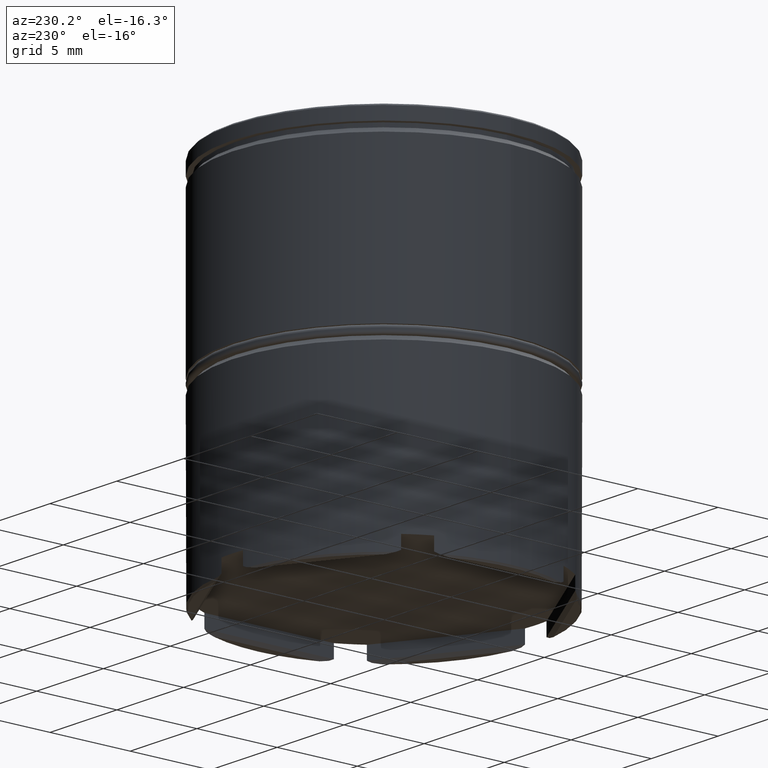
[diagram: clean part render]
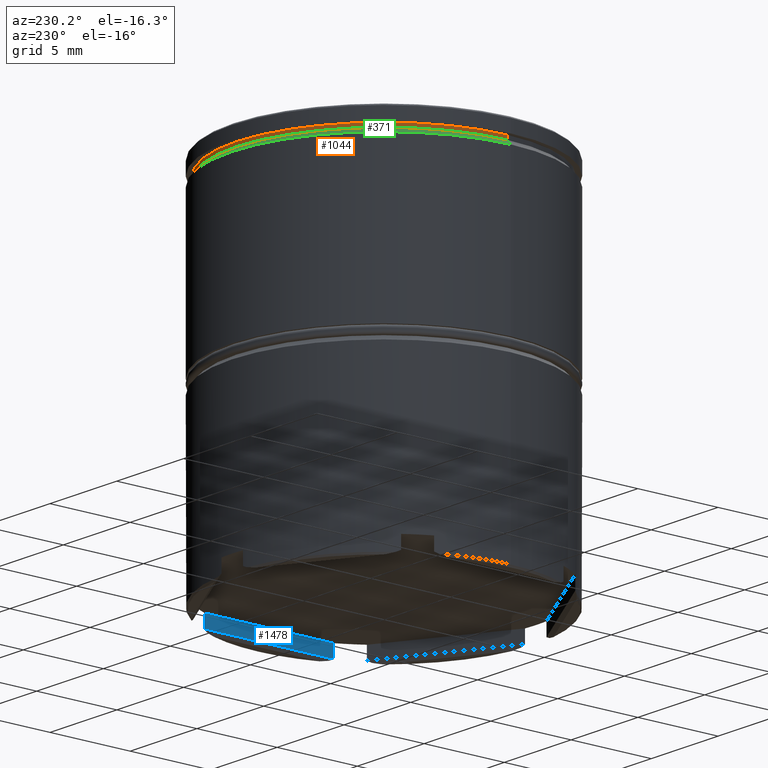
[diagram: same view with three faces highlighted in distinct colors, each labeled with its STEP entity id]
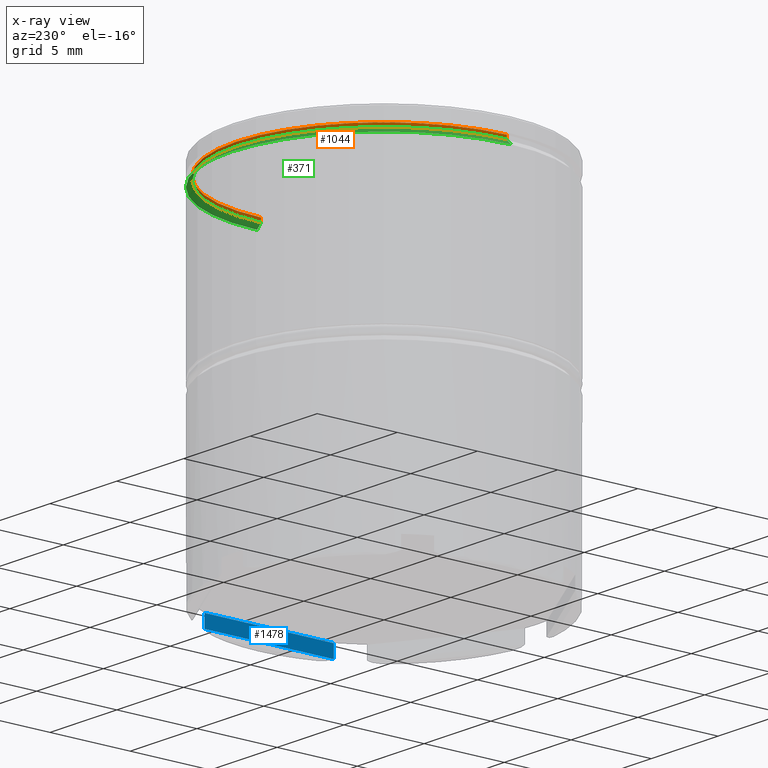
[diagram: x-ray of the same camera — body ghosted, the three highlighted faces saturated]
A machine part, auxiliary view with three faces highlighted in distinct colors.
The next image is the same camera in x-ray (body ghosted, the three faces saturated) — at least one of them is partly hidden behind the body in this view.
Their STEP definitions:

[orange] entity #1044 — the highlighted cylindrical surface (partial cylindrical patch) has radius 9.2 mm, axis along (-0, -0, 1).
#44 = CARTESIAN_POINT ( 'NONE',  ( -9.199999999999999289, 1.126675055215564822E-15, 0.000000000000000000 ) ) ;
#96 = VERTEX_POINT ( 'NONE', #869 ) ;
#120 = ORIENTED_EDGE ( 'NONE', *, *, #351, .T. ) ;
#164 = LINE ( 'NONE', #1015, #739 ) ;
#166 = ORIENTED_EDGE ( 'NONE', *, *, #1166, .F. ) ;
#226 = CARTESIAN_POINT ( 'NONE',  ( 9.199999999999999289, 0.000000000000000000, -1.125000000000000222 ) ) ;
#298 = VECTOR ( 'NONE', #1112, 1000.000000000000000 ) ;
#351 = EDGE_CURVE ( 'NONE', #443, #96, #758, .T. ) ;
#355 = DIRECTION ( 'NONE',  ( -0.000000000000000000, -0.000000000000000000, 1.000000000000000000 ) ) ;
#372 = LINE ( 'NONE', #44, #298 ) ;
#408 = CARTESIAN_POINT ( 'NONE',  ( -9.199999999999999289, 1.126675055215564822E-15, -0.8749999999999998890 ) ) ;
#420 = CYLINDRICAL_SURFACE ( 'NONE', #1116, 9.199999999999999289 ) ;
#427 = VERTEX_POINT ( 'NONE', #408 ) ;
#443 = VERTEX_POINT ( 'NONE', #226 ) ;
#451 = CIRCLE ( 'NONE', #1367, 9.199999999999999289 ) ;
#552 = DIRECTION ( 'NONE',  ( 1.000000000000000000, 0.000000000000000000, 0.000000000000000000 ) ) ;
#587 = ORIENTED_EDGE ( 'NONE', *, *, #823, .T. ) ;
#626 = VERTEX_POINT ( 'NONE', #1404 ) ;
#640 = CARTESIAN_POINT ( 'NONE',  ( 0.000000000000000000, 0.000000000000000000, -1.125000000000000222 ) ) ;
#677 = FACE_OUTER_BOUND ( 'NONE', #1065, .T. ) ;
#739 = VECTOR ( 'NONE', #1008, 1000.000000000000000 ) ;
#758 = CIRCLE ( 'NONE', #943, 9.199999999999999289 ) ;
#769 = DIRECTION ( 'NONE',  ( 1.000000000000000000, 0.000000000000000000, 0.000000000000000000 ) ) ;
#823 = EDGE_CURVE ( 'NONE', #96, #427, #372, .T. ) ;
#855 = EDGE_CURVE ( 'NONE', #443, #626, #164, .T. ) ;
#869 = CARTESIAN_POINT ( 'NONE',  ( -9.199999999999999289, 1.126675055215564822E-15, -1.125000000000000222 ) ) ;
#922 = DIRECTION ( 'NONE',  ( -0.000000000000000000, -0.000000000000000000, 1.000000000000000000 ) ) ;
#943 = AXIS2_PLACEMENT_3D ( 'NONE', #640, #1259, #769 ) ;
#955 = DIRECTION ( 'NONE',  ( 1.000000000000000000, 0.000000000000000000, 0.000000000000000000 ) ) ;
#1008 = DIRECTION ( 'NONE',  ( -0.000000000000000000, -0.000000000000000000, 1.000000000000000000 ) ) ;
#1015 = CARTESIAN_POINT ( 'NONE',  ( 9.199999999999999289, 0.000000000000000000, 0.000000000000000000 ) ) ;
#1027 = ORIENTED_EDGE ( 'NONE', *, *, #855, .F. ) ;
#1044 = ADVANCED_FACE ( 'NONE', ( #677 ), #420, .T. ) ;
#1065 = EDGE_LOOP ( 'NONE', ( #120, #587, #166, #1027 ) ) ;
#1079 = CARTESIAN_POINT ( 'NONE',  ( 0.000000000000000000, 0.000000000000000000, -0.8749999999999998890 ) ) ;
#1112 = DIRECTION ( 'NONE',  ( -0.000000000000000000, -0.000000000000000000, 1.000000000000000000 ) ) ;
#1116 = AXIS2_PLACEMENT_3D ( 'NONE', #1303, #922, #552 ) ;
#1166 = EDGE_CURVE ( 'NONE', #626, #427, #451, .T. ) ;
#1259 = DIRECTION ( 'NONE',  ( -0.000000000000000000, -0.000000000000000000, 1.000000000000000000 ) ) ;
#1303 = CARTESIAN_POINT ( 'NONE',  ( 0.000000000000000000, 0.000000000000000000, 0.000000000000000000 ) ) ;
#1367 = AXIS2_PLACEMENT_3D ( 'NONE', #1079, #355, #955 ) ;
#1404 = CARTESIAN_POINT ( 'NONE',  ( 9.199999999999999289, 0.000000000000000000, -0.8749999999999998890 ) ) ;

[blue] entity #1478 — the highlighted planar face has unit normal (1, 0, -0).
#12 = EDGE_CURVE ( 'NONE', #310, #407, #577, .T. ) ;
#29 = ORIENTED_EDGE ( 'NONE', *, *, #1147, .T. ) ;
#46 = ORIENTED_EDGE ( 'NONE', *, *, #433, .T. ) ;
#49 = CARTESIAN_POINT ( 'NONE',  ( 8.599999999999999645, 4.036087214122112243, -21.50000000000000000 ) ) ;
#82 = PLANE ( 'NONE',  #820 ) ;
#117 = LINE ( 'NONE', #124, #1098 ) ;
#121 = DIRECTION ( 'NONE',  ( 0.000000000000000000, -1.000000000000000000, 0.000000000000000000 ) ) ;
#124 = CARTESIAN_POINT ( 'NONE',  ( 8.599999999999999645, 4.036087214122112243, 0.000000000000000000 ) ) ;
#148 = VECTOR ( 'NONE', #440, 1000.000000000000000 ) ;
#179 = CARTESIAN_POINT ( 'NONE',  ( 8.599999999999999645, 4.036087214122112243, -22.29999999999999716 ) ) ;
#211 = FACE_OUTER_BOUND ( 'NONE', #1266, .T. ) ;
#261 = LINE ( 'NONE', #1239, #343 ) ;
#310 = VERTEX_POINT ( 'NONE', #1241 ) ;
#343 = VECTOR ( 'NONE', #654, 1000.000000000000000 ) ;
#407 = VERTEX_POINT ( 'NONE', #778 ) ;
#409 = DIRECTION ( 'NONE',  ( -0.000000000000000000, 0.000000000000000000, -1.000000000000000000 ) ) ;
#415 = VERTEX_POINT ( 'NONE', #49 ) ;
#433 = EDGE_CURVE ( 'NONE', #1035, #310, #611, .T. ) ;
#440 = DIRECTION ( 'NONE',  ( -0.000000000000000000, -0.000000000000000000, 1.000000000000000000 ) ) ;
#577 = LINE ( 'NONE', #1606, #148 ) ;
#611 = LINE ( 'NONE', #1219, #1556 ) ;
#654 = DIRECTION ( 'NONE',  ( 0.000000000000000000, -1.000000000000000000, 0.000000000000000000 ) ) ;
#778 = CARTESIAN_POINT ( 'NONE',  ( 8.599999999999999645, -4.036087214122112243, -21.50000000000000000 ) ) ;
#791 = EDGE_CURVE ( 'NONE', #415, #407, #261, .T. ) ;
#820 = AXIS2_PLACEMENT_3D ( 'NONE', #1541, #1149, #409 ) ;
#1035 = VERTEX_POINT ( 'NONE', #179 ) ;
#1098 = VECTOR ( 'NONE', #1106, 1000.000000000000000 ) ;
#1106 = DIRECTION ( 'NONE',  ( 0.000000000000000000, 0.000000000000000000, -1.000000000000000000 ) ) ;
#1147 = EDGE_CURVE ( 'NONE', #415, #1035, #117, .T. ) ;
#1149 = DIRECTION ( 'NONE',  ( 1.000000000000000000, 0.000000000000000000, -0.000000000000000000 ) ) ;
#1219 = CARTESIAN_POINT ( 'NONE',  ( 8.599999999999999645, -3.794733192202054628, -22.29999999999999716 ) ) ;
#1239 = CARTESIAN_POINT ( 'NONE',  ( 8.599999999999999645, 4.965212315030778534, -21.50000000000000000 ) ) ;
#1241 = CARTESIAN_POINT ( 'NONE',  ( 8.599999999999999645, -4.036087214122112243, -22.29999999999999716 ) ) ;
#1266 = EDGE_LOOP ( 'NONE', ( #29, #46, #1529, #1464 ) ) ;
#1464 = ORIENTED_EDGE ( 'NONE', *, *, #791, .F. ) ;
#1478 = ADVANCED_FACE ( 'NONE', ( #211 ), #82, .F. ) ;
#1529 = ORIENTED_EDGE ( 'NONE', *, *, #12, .T. ) ;
#1541 = CARTESIAN_POINT ( 'NONE',  ( 8.599999999999999645, 4.965212315030778534, -21.50000000000000000 ) ) ;
#1556 = VECTOR ( 'NONE', #121, 1000.000000000000000 ) ;
#1606 = CARTESIAN_POINT ( 'NONE',  ( 8.599999999999999645, -4.036087214122112243, 0.000000000000000000 ) ) ;

[green] entity #371 — the highlighted conical surface has half-angle 45 deg.
#37 = AXIS2_PLACEMENT_3D ( 'NONE', #1146, #507, #533 ) ;
#50 = CARTESIAN_POINT ( 'NONE',  ( -9.199999999999999289, 0.000000000000000000, -1.125000000000000222 ) ) ;
#96 = VERTEX_POINT ( 'NONE', #869 ) ;
#201 = CIRCLE ( 'NONE', #37, 9.500000000000000000 ) ;
#226 = CARTESIAN_POINT ( 'NONE',  ( 9.199999999999999289, 0.000000000000000000, -1.125000000000000222 ) ) ;
#274 = VERTEX_POINT ( 'NONE', #767 ) ;
#351 = EDGE_CURVE ( 'NONE', #443, #96, #758, .T. ) ;
#371 = ADVANCED_FACE ( 'NONE', ( #1323 ), #710, .T. ) ;
#399 = LINE ( 'NONE', #896, #743 ) ;
#417 = DIRECTION ( 'NONE',  ( -0.7071067811865434649, 0.000000000000000000, -0.7071067811865516806 ) ) ;
#425 = VECTOR ( 'NONE', #417, 1000.000000000000000 ) ;
#436 = ORIENTED_EDGE ( 'NONE', *, *, #811, .F. ) ;
#443 = VERTEX_POINT ( 'NONE', #226 ) ;
#507 = DIRECTION ( 'NONE',  ( 0.000000000000000000, 0.000000000000000000, -1.000000000000000000 ) ) ;
#533 = DIRECTION ( 'NONE',  ( 1.000000000000000000, 0.000000000000000000, 0.000000000000000000 ) ) ;
#542 = DIRECTION ( 'NONE',  ( -1.000000000000000000, 0.000000000000000000, 0.000000000000000000 ) ) ;
#640 = CARTESIAN_POINT ( 'NONE',  ( 0.000000000000000000, 0.000000000000000000, -1.125000000000000222 ) ) ;
#645 = DIRECTION ( 'NONE',  ( 0.7071067811865434649, 8.659560562354883554E-17, -0.7071067811865516806 ) ) ;
#680 = VERTEX_POINT ( 'NONE', #880 ) ;
#710 = CONICAL_SURFACE ( 'NONE', #1273, 9.199999999999999289, 0.7853981633974425058 ) ;
#743 = VECTOR ( 'NONE', #645, 1000.000000000000000 ) ;
#758 = CIRCLE ( 'NONE', #943, 9.199999999999999289 ) ;
#767 = CARTESIAN_POINT ( 'NONE',  ( -9.500000000000000000, 1.163414459189985485E-15, -1.425000000000003597 ) ) ;
#769 = DIRECTION ( 'NONE',  ( 1.000000000000000000, 0.000000000000000000, 0.000000000000000000 ) ) ;
#797 = ORIENTED_EDGE ( 'NONE', *, *, #351, .F. ) ;
#811 = EDGE_CURVE ( 'NONE', #274, #680, #201, .T. ) ;
#869 = CARTESIAN_POINT ( 'NONE',  ( -9.199999999999999289, 1.126675055215564822E-15, -1.125000000000000222 ) ) ;
#880 = CARTESIAN_POINT ( 'NONE',  ( 9.500000000000000000, 0.000000000000000000, -1.425000000000003597 ) ) ;
#896 = CARTESIAN_POINT ( 'NONE',  ( 9.199999999999999289, 1.126675055215564822E-15, -1.125000000000000222 ) ) ;
#943 = AXIS2_PLACEMENT_3D ( 'NONE', #640, #1259, #769 ) ;
#1009 = ORIENTED_EDGE ( 'NONE', *, *, #1382, .F. ) ;
#1146 = CARTESIAN_POINT ( 'NONE',  ( 0.000000000000000000, 0.000000000000000000, -1.425000000000003597 ) ) ;
#1152 = DIRECTION ( 'NONE',  ( 0.000000000000000000, 0.000000000000000000, -1.000000000000000000 ) ) ;
#1259 = DIRECTION ( 'NONE',  ( -0.000000000000000000, -0.000000000000000000, 1.000000000000000000 ) ) ;
#1261 = EDGE_CURVE ( 'NONE', #443, #680, #399, .T. ) ;
#1273 = AXIS2_PLACEMENT_3D ( 'NONE', #1302, #1152, #542 ) ;
#1302 = CARTESIAN_POINT ( 'NONE',  ( 0.000000000000000000, 0.000000000000000000, -1.125000000000000222 ) ) ;
#1311 = LINE ( 'NONE', #50, #425 ) ;
#1323 = FACE_OUTER_BOUND ( 'NONE', #1602, .T. ) ;
#1382 = EDGE_CURVE ( 'NONE', #96, #274, #1311, .T. ) ;
#1587 = ORIENTED_EDGE ( 'NONE', *, *, #1261, .T. ) ;
#1602 = EDGE_LOOP ( 'NONE', ( #797, #1587, #436, #1009 ) ) ;